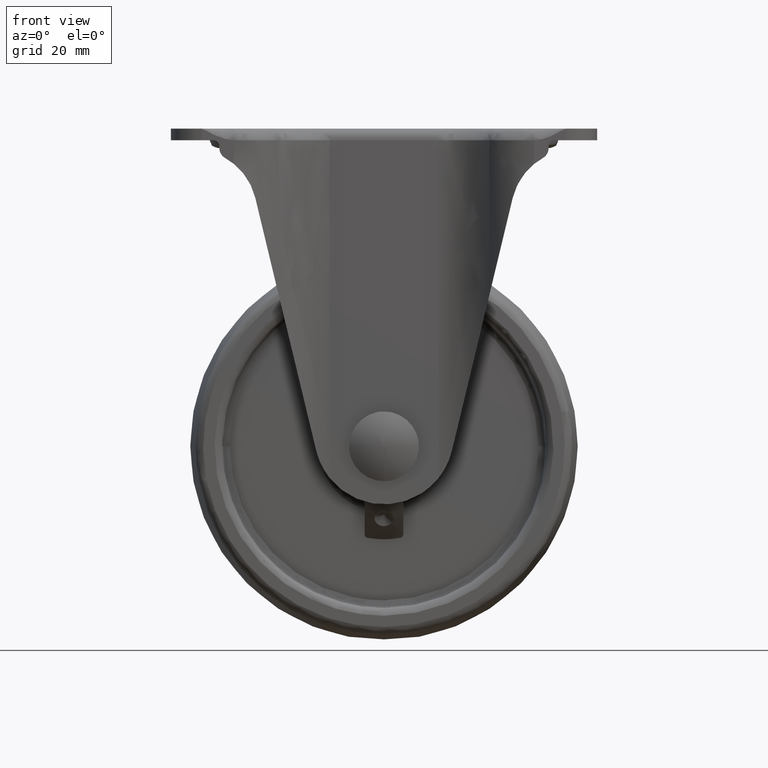
[diagram: clean part render]
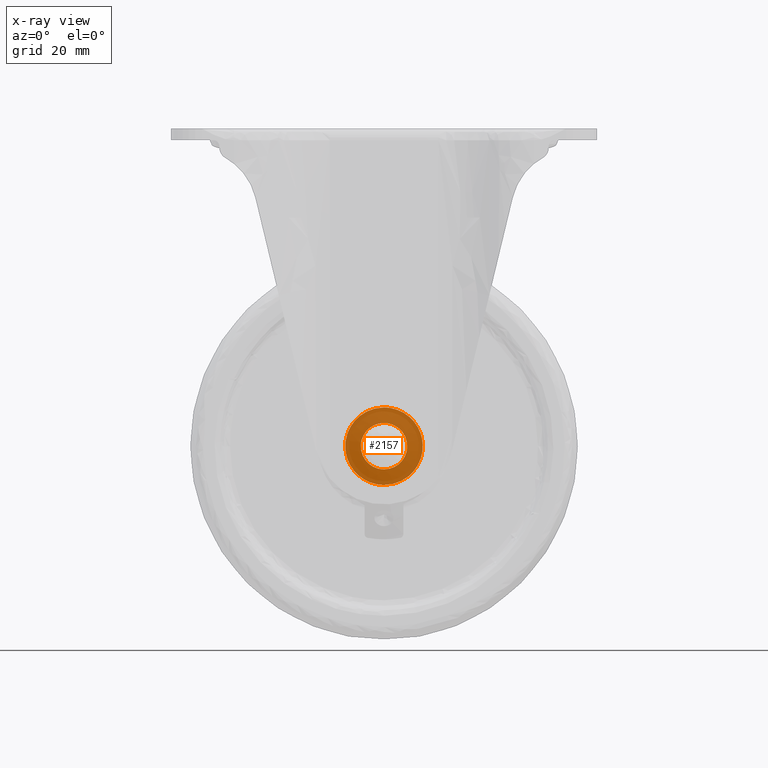
[diagram: x-ray — body ghosted, one internal face saturated and labeled with its STEP entity id]
A machine part, front view, then the same camera in x-ray: the body is ghosted and one INTERNAL B-rep face — a face not visible from any outside direction — is saturated and labeled: STEP entity #2157.
In plain terms, the highlighted face is a freeform B-spline surface patch.
Its self-contained STEP definition (entity closure, byte-faithful):
#1950=CARTESIAN_POINT('',(8.639241090777437,22.0,-5.036228049912941));
#1951=VERTEX_POINT('',#1950);
#1965=CARTESIAN_POINT('',(0.0,22.0,10.000015999999979));
#1966=VERTEX_POINT('',#1965);
#1967=CARTESIAN_POINT('',(8.639241090777437,22.000000000000004,-5.036228049912941));
#1968=CARTESIAN_POINT('',(10.000008006970797,22.000000000000004,-2.701946386458817));
#1969=CARTESIAN_POINT('',(10.000008005949811,22.0,0.000007996531549));
#1970=CARTESIAN_POINT('',(10.000008002171098,22.000000000000007,10.000015998734341));
#1971=CARTESIAN_POINT('',(0.0,22.0,10.000015999999979));
#1979=(BOUNDED_CURVE()B_SPLINE_CURVE(2,(#1967,#1968,#1969,#1970,#1971),.UNSPECIFIED.,.F.,.U.)B_SPLINE_CURVE_WITH_KNOTS((3,2,3),(0.164086837568580,0.250000000000000,0.500000000000000),.UNSPECIFIED.)CURVE()GEOMETRIC_REPRESENTATION_ITEM()RATIONAL_B_SPLINE_CURVE((0.867872643616690,0.899346469268073,1.0,0.707106781186548,1.0))REPRESENTATION_ITEM(''));
#1980=EDGE_CURVE('',#1951,#1966,#1979,.T.);
#1982=CARTESIAN_POINT('',(-8.639241090777439,22.0,5.036244049912900));
#1983=VERTEX_POINT('',#1982);
#1984=CARTESIAN_POINT('',(0.0,22.0,10.000015999999979));
#1985=CARTESIAN_POINT('',(-5.745615709713068,22.000000000000004,10.000016002202775));
#1986=CARTESIAN_POINT('',(-8.639241090777439,22.000000000000004,5.036244049912900));
#1994=(BOUNDED_CURVE()B_SPLINE_CURVE(2,(#1984,#1985,#1986),.UNSPECIFIED.,.F.,.U.)B_SPLINE_CURVE_WITH_KNOTS((3,3),(0.500000000000000,0.664086837568580),.UNSPECIFIED.)CURVE()GEOMETRIC_REPRESENTATION_ITEM()RATIONAL_B_SPLINE_CURVE((1.0,0.807760311918474,0.867872643616690))REPRESENTATION_ITEM(''));
#1995=EDGE_CURVE('',#1966,#1983,#1994,.T.);
#2046=CARTESIAN_POINT('',(0.0,22.0,-9.999999999999998));
#2047=VERTEX_POINT('',#2046);
#2048=CARTESIAN_POINT('',(-8.639241090777439,22.000000000000004,5.036244049912900));
#2049=CARTESIAN_POINT('',(-10.000008006970797,22.0,2.701962386458781));
#2050=CARTESIAN_POINT('',(-10.000008005949811,22.0,0.000008003468421));
#2051=CARTESIAN_POINT('',(-10.000008002171098,22.000000000000007,-9.999999998734364));
#2052=CARTESIAN_POINT('',(0.0,22.0,-9.999999999999998));
#2060=(BOUNDED_CURVE()B_SPLINE_CURVE(2,(#2048,#2049,#2050,#2051,#2052),.UNSPECIFIED.,.F.,.U.)B_SPLINE_CURVE_WITH_KNOTS((3,2,3),(0.664086837568580,0.750000000000000,1.0),.UNSPECIFIED.)CURVE()GEOMETRIC_REPRESENTATION_ITEM()RATIONAL_B_SPLINE_CURVE((0.867872643616690,0.899346469268073,1.0,0.707106781186548,1.0))REPRESENTATION_ITEM(''));
#2061=EDGE_CURVE('',#1983,#2047,#2060,.T.);
#2063=CARTESIAN_POINT('',(0.0,22.0,-9.999999999999998));
#2064=CARTESIAN_POINT('',(5.745615709713063,22.000000000000004,-10.000000002202801));
#2065=CARTESIAN_POINT('',(8.639241090777437,22.000000000000004,-5.036228049912941));
#2073=(BOUNDED_CURVE()B_SPLINE_CURVE(2,(#2063,#2064,#2065),.UNSPECIFIED.,.F.,.U.)B_SPLINE_CURVE_WITH_KNOTS((3,3),(0.0,0.164086837568580),.UNSPECIFIED.)CURVE()GEOMETRIC_REPRESENTATION_ITEM()RATIONAL_B_SPLINE_CURVE((1.0,0.807760311918475,0.867872643616690))REPRESENTATION_ITEM(''));
#2074=EDGE_CURVE('',#2047,#1951,#2073,.T.);
#2080=CARTESIAN_POINT('',(-10.993437329805930,22.0,10.999016760436071));
#2081=CARTESIAN_POINT('',(-10.993437329805930,22.0,-10.999001296878321));
#2082=CARTESIAN_POINT('',(10.993437329805930,22.0,10.999016760436071));
#2083=CARTESIAN_POINT('',(10.993437329805930,22.0,-10.999001296878321));
#2084=B_SPLINE_SURFACE_WITH_KNOTS('',1,1,((#2080,#2082),(#2081,#2083)),.UNSPECIFIED.,.F.,.F.,.U.,(2,2),(2,2),(0.0,21.998018057314379),(0.0,21.986874659611860),.UNSPECIFIED.);
#2085=ORIENTED_EDGE('',*,*,#2061,.F.);
#2086=ORIENTED_EDGE('',*,*,#1995,.F.);
#2087=ORIENTED_EDGE('',*,*,#1980,.F.);
#2088=ORIENTED_EDGE('',*,*,#2074,.F.);
#2089=EDGE_LOOP('',(#2085,#2086,#2087,#2088));
#2090=FACE_OUTER_BOUND('',#2089,.T.);
#2091=CARTESIAN_POINT('',(0.0,22.0,6.000015999999983));
#2092=VERTEX_POINT('',#2091);
#2093=CARTESIAN_POINT('',(-5.988816775588516,22.0,0.366299725941977));
#2094=VERTEX_POINT('',#2093);
#2095=CARTESIAN_POINT('',(0.0,22.0,6.000015999999983));
#2096=CARTESIAN_POINT('',(-5.644243926757387,22.000000000000004,6.000015999999984));
#2097=CARTESIAN_POINT('',(-5.988816775588516,22.000000000000004,0.366299725941976));
#2105=(BOUNDED_CURVE()B_SPLINE_CURVE(2,(#2095,#2096,#2097),.UNSPECIFIED.,.F.,.U.)B_SPLINE_CURVE_WITH_KNOTS((3,3),(0.500000000000000,0.739332962232042),.UNSPECIFIED.)CURVE()GEOMETRIC_REPRESENTATION_ITEM()RATIONAL_B_SPLINE_CURVE((1.0,0.719603993294795,0.976072041651927))REPRESENTATION_ITEM(''));
#2106=EDGE_CURVE('',#2092,#2094,#2105,.T.);
#2107=ORIENTED_EDGE('',*,*,#2106,.T.);
#2108=CARTESIAN_POINT('',(0.0,22.0,-6.000000000000018));
#2109=VERTEX_POINT('',#2108);
#2110=CARTESIAN_POINT('',(-5.988816775588516,22.000000000000004,0.366299725941976));
#2111=CARTESIAN_POINT('',(-6.000008000000000,22.000000000000004,0.183324824386373));
#2112=CARTESIAN_POINT('',(-6.000008000000000,22.0,0.000007999999983));
#2113=CARTESIAN_POINT('',(-6.000008000000001,22.000000000000007,-6.000000000000020));
#2114=CARTESIAN_POINT('',(0.0,22.0,-6.000000000000018));
#2122=(BOUNDED_CURVE()B_SPLINE_CURVE(2,(#2110,#2111,#2112,#2113,#2114),.UNSPECIFIED.,.F.,.U.)B_SPLINE_CURVE_WITH_KNOTS((3,2,3),(0.739332962232042,0.750000000000000,1.0),.UNSPECIFIED.)CURVE()GEOMETRIC_REPRESENTATION_ITEM()RATIONAL_B_SPLINE_CURVE((0.976072041651927,0.987502787891752,1.0,0.707106781186548,1.0))REPRESENTATION_ITEM(''));
#2123=EDGE_CURVE('',#2094,#2109,#2122,.T.);
#2124=ORIENTED_EDGE('',*,*,#2123,.T.);
#2125=CARTESIAN_POINT('',(5.988816775588516,22.0,-0.366283725942011));
#2126=VERTEX_POINT('',#2125);
#2127=CARTESIAN_POINT('',(0.0,22.0,-6.000000000000018));
#2128=CARTESIAN_POINT('',(5.644243926757387,22.000000000000004,-6.000000000000020));
#2129=CARTESIAN_POINT('',(5.988816775588516,22.0,-0.366283725942010));
#2137=(BOUNDED_CURVE()B_SPLINE_CURVE(2,(#2127,#2128,#2129),.UNSPECIFIED.,.F.,.U.)B_SPLINE_CURVE_WITH_KNOTS((3,3),(0.0,0.239332962232042),.UNSPECIFIED.)CURVE()GEOMETRIC_REPRESENTATION_ITEM()RATIONAL_B_SPLINE_CURVE((1.0,0.719603993294795,0.976072041651927))REPRESENTATION_ITEM(''));
#2138=EDGE_CURVE('',#2109,#2126,#2137,.T.);
#2139=ORIENTED_EDGE('',*,*,#2138,.T.);
#2140=CARTESIAN_POINT('',(5.988816775588516,22.0,-0.366283725942010));
#2141=CARTESIAN_POINT('',(6.000008000000000,22.000000000000004,-0.183308824386408));
#2142=CARTESIAN_POINT('',(6.000008000000000,22.0,0.000007999999983));
#2143=CARTESIAN_POINT('',(6.000008000000001,22.000000000000007,6.000015999999984));
#2144=CARTESIAN_POINT('',(0.0,22.0,6.000015999999983));
#2152=(BOUNDED_CURVE()B_SPLINE_CURVE(2,(#2140,#2141,#2142,#2143,#2144),.UNSPECIFIED.,.F.,.U.)B_SPLINE_CURVE_WITH_KNOTS((3,2,3),(0.239332962232042,0.250000000000000,0.500000000000000),.UNSPECIFIED.)CURVE()GEOMETRIC_REPRESENTATION_ITEM()RATIONAL_B_SPLINE_CURVE((0.976072041651927,0.987502787891752,1.0,0.707106781186548,1.0))REPRESENTATION_ITEM(''));
#2153=EDGE_CURVE('',#2126,#2092,#2152,.T.);
#2154=ORIENTED_EDGE('',*,*,#2153,.T.);
#2155=EDGE_LOOP('',(#2107,#2124,#2139,#2154));
#2156=FACE_BOUND('',#2155,.T.);
#2157=ADVANCED_FACE('',(#2090,#2156),#2084,.F.);